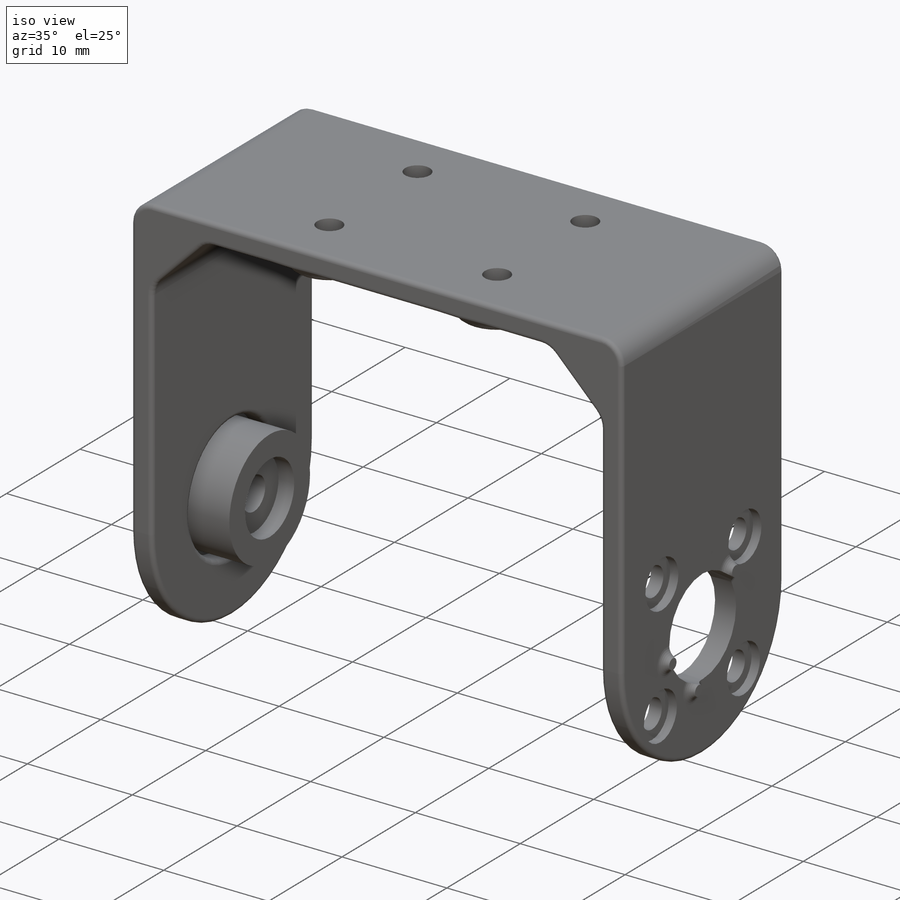
[diagram: iso view]
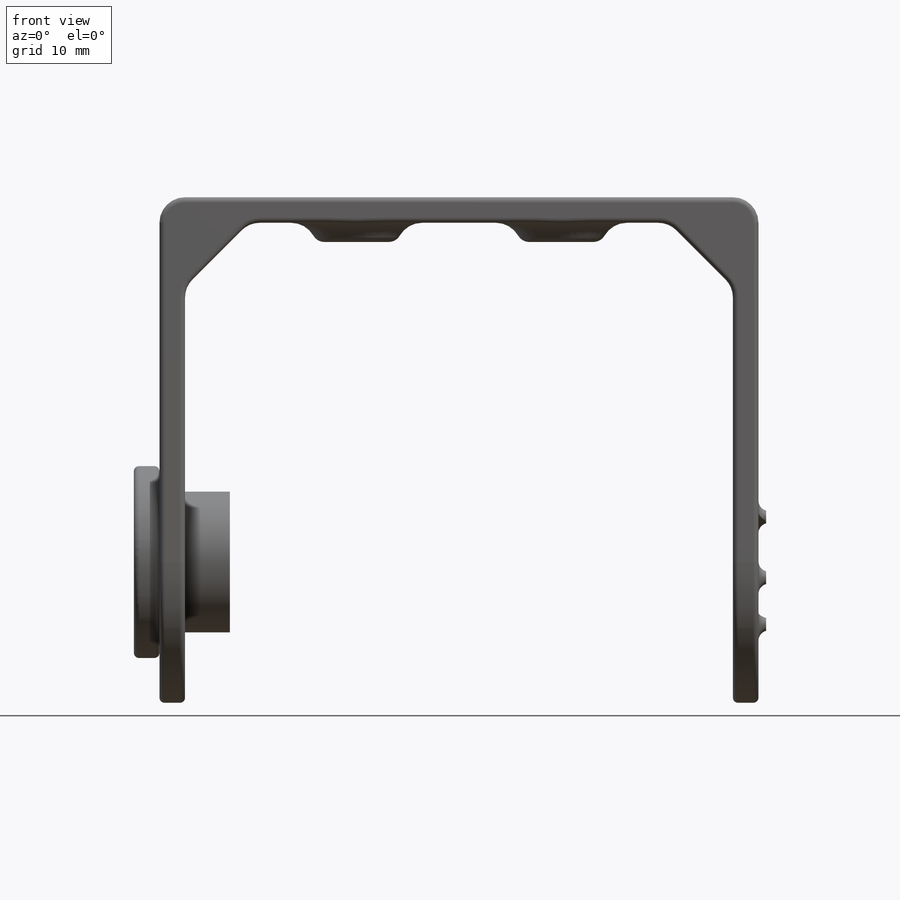
[diagram: front view]
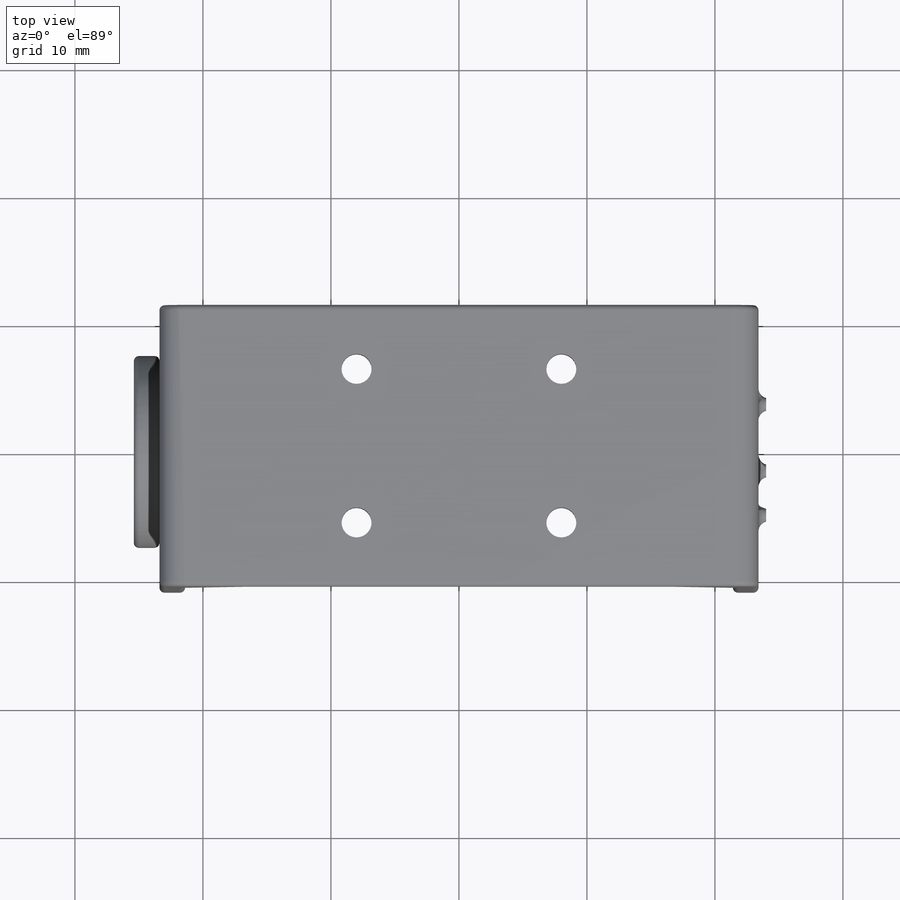
[diagram: top view]
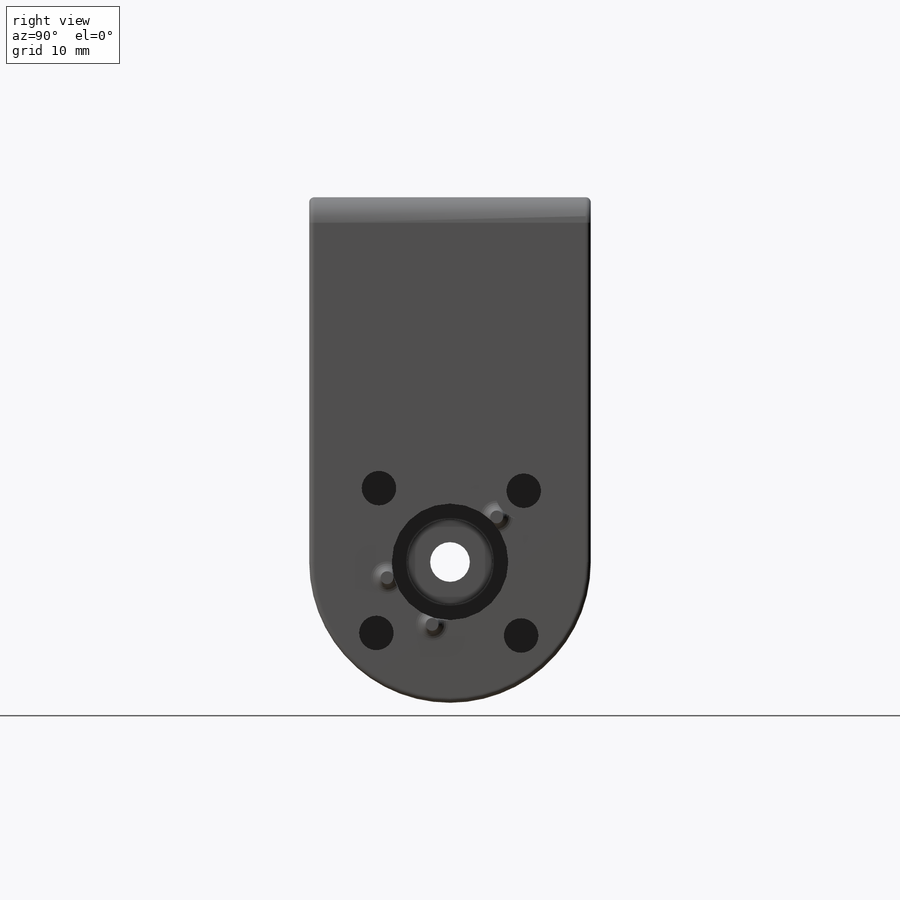
[diagram: right view]
SOLIDWORKS PART (.sldprt)
format: sldprt  version: not decoded by parser v0  size: 1,128,448 bytes
history: native  units: mm
features: sketch x13, fillet x11, extrude x6, cut_extrude x6, material x1, chamfer x1 (+13 scaffold rows collapsed)
feature tree (51):
  scaffold x13  (default folders/planes/origin — collapsed)
  material  "Material <not specified>"
  sketch  "Sketch1"  dims[c1.D1=11.0mm c1.D2=26.5mm c2.D1=11.0mm c2.D4=42.8mm c2.D3=2.0mm]
  extrude  "Boss-Extrude1"  Depth=22mm
  sketch  "Sketch2"  dims[D1=8.9mm]
  cut_extrude  "Cut-Extrude1"  [1 undecoded]
  fillet  "Fillet2"  Radius=2mm
  sketch  "Sketch3"  dims[c1.D1=2.05mm c1.D2=2.05mm c1.D3=2.05mm c2.D2=16.0mm c2.D3=12.0mm]
  cut_extrude  "Cut-Extrude2"  [1 undecoded]
  sketch  "Sketch4"  dims[D1=2.0mm]
  extrude  "Boss-Extrude2"  Depth=1.5mm
  sketch  "Sketch5"  dims[D1=11.0mm D2=6.7mm]
  extrude  "Boss-Extrude5"  Depth=3.5mm
  sketch  "Sketch6"  dims[D1=2.8mm]
  extrude  "Boss-Extrude6"  Depth=2mm
  sketch  "Sketch8"  dims[D1=5.2mm]
  cut_extrude  "Cut-Extrude3"  Depth=1.1mm
  fillet  "Fillet7"  Radius=4mm
  fillet  "Fillet8"  Radius=1mm
  fillet  "Fillet4"  Radius=2mm
  fillet  "Fillet3"  Radius=1mm
  chamfer  "Chamfer1"  Distance=5mm Angle=45deg
  fillet  "Fillet12"  Radius=2mm
  fillet  "Fillet5"  Radius=1mm
  fillet  "Fillet6"  Radius=0.4mm
  sketch  "Sketch9"  dims[D1=2.4mm]
  cut_extrude  "Cut-Extrude4"  [1 undecoded]
  sketch  "Sketch10"  dims[D2=1.0mm D1=~5.07039mm]
  extrude  "Boss-Extrude7"  Depth=0.6mm
  sketch  "Sketch11"  dims[D1=4.3mm]
  cut_extrude  "Cut-Extrude5"  Depth=0.8mm
  fillet  "Fillet9"  Radius=0.8mm
  sketch  "Sketch12"  dims[D1=0.4mm]
  cut_extrude  "Cut-Extrude6"  [1 undecoded]
  sketch  "Sketch13"  dims[D1=15.0mm]
  extrude  "Boss-Extrude8"  Depth=2mm
  sketch  "Sketch14"  dims[D1=13.0mm]
  fillet  "Fillet10"  Radius=0.4mm
  fillet  "Fillet13"  Radius=0.4mm
decode coverage: 33 of 37 modeling features carry decoded parameters
note: ~ marks probable driven/reference dimensions
note: 4 parameter values undecoded
summary: no parameter record found for 4 features
note: suppression state not decoded; provenance and decode notes live in map.json
